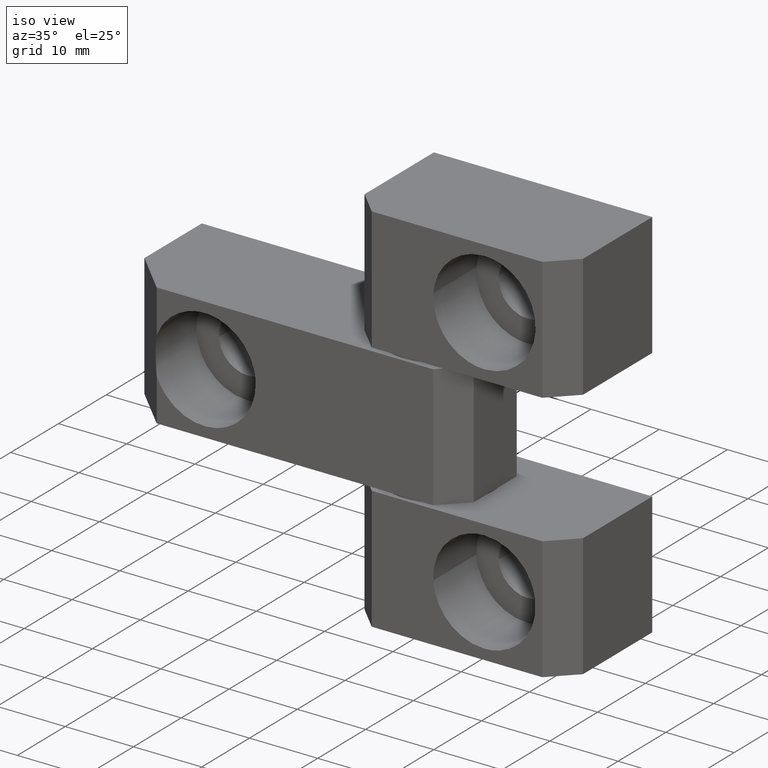
[diagram: clean part render]
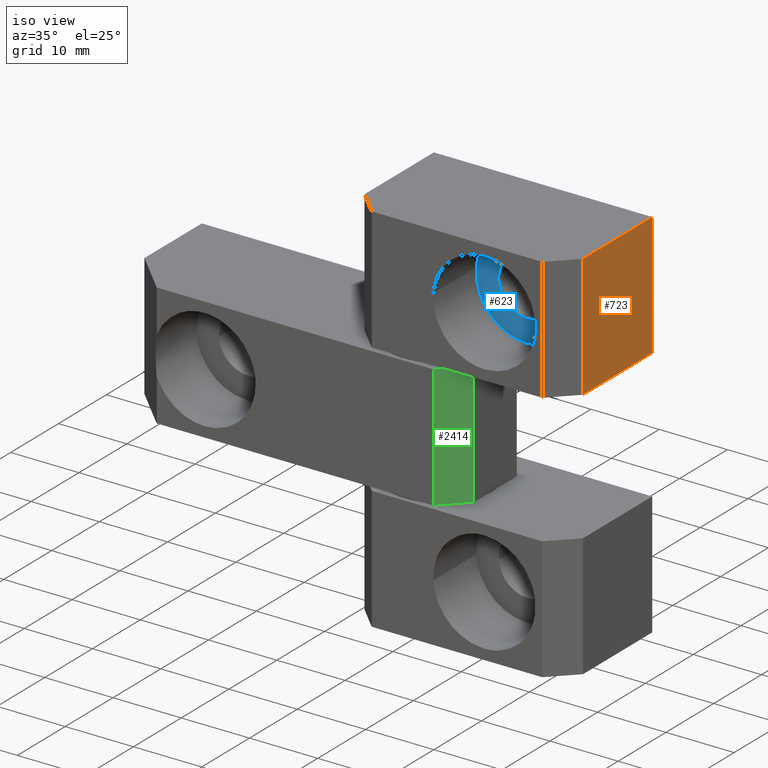
[diagram: same view with three faces highlighted in distinct colors, each labeled with its STEP entity id]
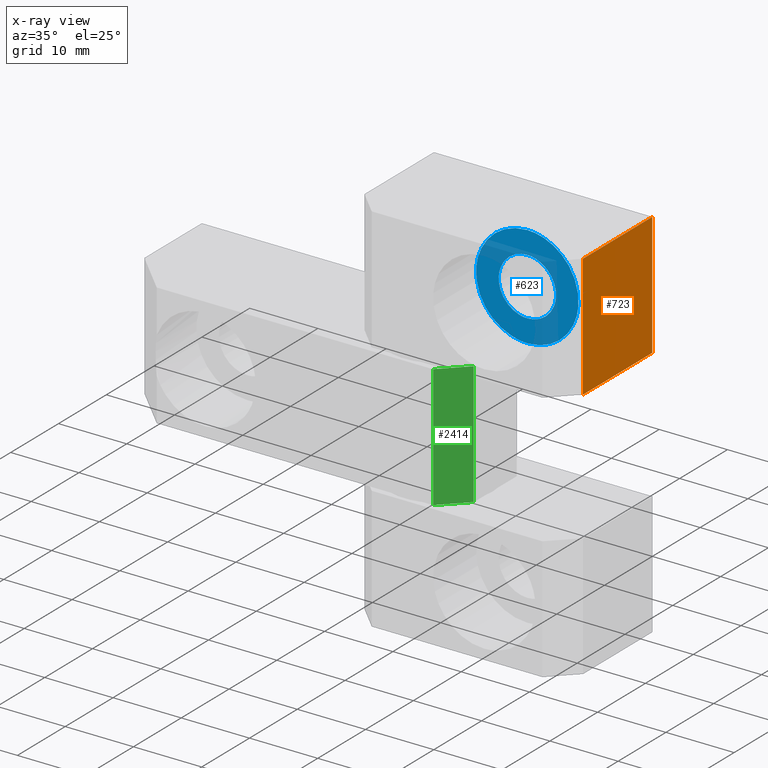
[diagram: x-ray of the same camera — body ghosted, the three highlighted faces saturated]
A machine part, iso view with three faces highlighted in distinct colors.
The next image is the same camera in x-ray (body ghosted, the three faces saturated) — at least one of them is partly hidden behind the body in this view.
Their STEP definitions:

[orange] entity #723 — the highlighted face is a freeform B-spline surface patch.
#645=CARTESIAN_POINT('',(24.000001139938799,-4.500000688713040,55.000002612359800));
#646=VERTEX_POINT('',#645);
#652=CARTESIAN_POINT('',(24.000001139938799,10.0,55.000002612359800));
#653=VERTEX_POINT('',#652);
#654=CARTESIAN_POINT('',(24.000001139938799,10.0,55.000002612359800));
#655=CARTESIAN_POINT('',(24.000001139938799,-4.500000688713040,55.000002612359800));
#656=QUASI_UNIFORM_CURVE('',1,(#654,#655),.UNSPECIFIED.,.F.,.U.);
#657=EDGE_CURVE('',#653,#646,#656,.T.);
#687=CARTESIAN_POINT('',(24.000001139938799,-4.500000688713040,37.000001757405549));
#688=VERTEX_POINT('',#687);
#694=CARTESIAN_POINT('',(24.000001139938799,-4.500000688713040,37.000001757405549));
#695=CARTESIAN_POINT('',(24.000001139938799,-4.500000688713040,55.000002612359800));
#696=QUASI_UNIFORM_CURVE('',1,(#694,#695),.UNSPECIFIED.,.F.,.U.);
#697=EDGE_CURVE('',#688,#646,#696,.T.);
#702=CARTESIAN_POINT('',(24.000001139938799,10.724274954493220,36.100899826597008));
#703=CARTESIAN_POINT('',(24.000001139938799,10.724274954493220,55.899104543168349));
#704=CARTESIAN_POINT('',(24.000001139938799,-5.224274995005713,36.100899826597008));
#705=CARTESIAN_POINT('',(24.000001139938799,-5.224274995005713,55.899104543168349));
#706=B_SPLINE_SURFACE_WITH_KNOTS('',1,1,((#702,#704),(#703,#705)),.UNSPECIFIED.,.F.,.F.,.U.,(2,2),(2,2),(0.0,19.798204716571341),(0.0,15.948549949498929),.UNSPECIFIED.);
#707=ORIENTED_EDGE('',*,*,#657,.T.);
#708=ORIENTED_EDGE('',*,*,#697,.F.);
#709=CARTESIAN_POINT('',(24.000001139938799,10.0,37.000001757405549));
#710=VERTEX_POINT('',#709);
#711=CARTESIAN_POINT('',(24.000001139938799,10.0,37.000001757405549));
#712=CARTESIAN_POINT('',(24.000001139938799,-4.500000688713040,37.000001757405549));
#713=QUASI_UNIFORM_CURVE('',1,(#711,#712),.UNSPECIFIED.,.F.,.U.);
#714=EDGE_CURVE('',#710,#688,#713,.T.);
#715=ORIENTED_EDGE('',*,*,#714,.F.);
#716=CARTESIAN_POINT('',(24.000001139938799,10.0,37.000001757405549));
#717=CARTESIAN_POINT('',(24.000001139938799,10.0,55.000002612359800));
#718=QUASI_UNIFORM_CURVE('',1,(#716,#717),.UNSPECIFIED.,.F.,.U.);
#719=EDGE_CURVE('',#710,#653,#718,.T.);
#720=ORIENTED_EDGE('',*,*,#719,.T.);
#721=EDGE_LOOP('',(#707,#708,#715,#720));
#722=FACE_OUTER_BOUND('',#721,.T.);
#723=ADVANCED_FACE('',(#722),#706,.T.);

[blue] entity #623 — the highlighted face is a freeform B-spline surface patch.
#248=CARTESIAN_POINT('',(12.000000569969419,0.999999572523076,41.800001985393372));
#249=VERTEX_POINT('',#248);
#250=CARTESIAN_POINT('',(16.187053570515761,0.999999572523075,45.670473967082962));
#251=VERTEX_POINT('',#250);
#252=CARTESIAN_POINT('',(12.000000569969419,0.999999572523076,41.800001985393372));
#253=CARTESIAN_POINT('',(15.882440819170599,0.999999572523076,41.800001985393372));
#254=CARTESIAN_POINT('',(16.187053570515765,0.999999572523075,45.670473967082962));
#262=(BOUNDED_CURVE()B_SPLINE_CURVE(2,(#252,#253,#254),.UNSPECIFIED.,.F.,.U.)B_SPLINE_CURVE_WITH_KNOTS((3,3),(0.0,0.236331300625313),.UNSPECIFIED.)CURVE()GEOMETRIC_REPRESENTATION_ITEM()RATIONAL_B_SPLINE_CURVE((1.0,0.723120658613929,0.969723356156260))REPRESENTATION_ITEM(''));
#263=EDGE_CURVE('',#249,#251,#262,.T.);
#304=CARTESIAN_POINT('',(7.812947569423081,0.999999572523076,46.329530402682423));
#305=VERTEX_POINT('',#304);
#311=CARTESIAN_POINT('',(7.812947569423081,0.999999572523076,46.329530402682423));
#312=CARTESIAN_POINT('',(7.800000370480094,0.999999572523076,46.165020642244322));
#313=CARTESIAN_POINT('',(7.800000370480094,0.999999572523076,46.000002184882703));
#314=CARTESIAN_POINT('',(7.800000370480094,0.999999572523076,41.800001985393379));
#315=CARTESIAN_POINT('',(12.000000569969419,0.999999572523076,41.800001985393372));
#323=(BOUNDED_CURVE()B_SPLINE_CURVE(2,(#311,#312,#313,#314,#315),.UNSPECIFIED.,.F.,.U.)B_SPLINE_CURVE_WITH_KNOTS((3,2,3),(0.736331300625313,0.750000000000000,1.0),.UNSPECIFIED.)CURVE()GEOMETRIC_REPRESENTATION_ITEM()RATIONAL_B_SPLINE_CURVE((0.969723356156261,0.983986122572619,1.0,0.707106781186548,1.0))REPRESENTATION_ITEM(''));
#324=EDGE_CURVE('',#305,#249,#323,.T.);
#347=CARTESIAN_POINT('',(12.000000569969419,0.999999572523076,50.200002384372020));
#348=VERTEX_POINT('',#347);
#349=CARTESIAN_POINT('',(16.187053570515761,0.999999572523075,45.670473967082962));
#350=CARTESIAN_POINT('',(16.200000769458750,0.999999572523076,45.834983727521077));
#351=CARTESIAN_POINT('',(16.200000769458750,0.999999572523076,46.000002184882703));
#352=CARTESIAN_POINT('',(16.200000769458747,0.999999572523076,50.200002384372027));
#353=CARTESIAN_POINT('',(12.000000569969419,0.999999572523076,50.200002384372020));
#361=(BOUNDED_CURVE()B_SPLINE_CURVE(2,(#349,#350,#351,#352,#353),.UNSPECIFIED.,.F.,.U.)B_SPLINE_CURVE_WITH_KNOTS((3,2,3),(0.236331300625313,0.250000000000000,0.500000000000000),.UNSPECIFIED.)CURVE()GEOMETRIC_REPRESENTATION_ITEM()RATIONAL_B_SPLINE_CURVE((0.969723356156260,0.983986122572618,1.0,0.707106781186548,1.0))REPRESENTATION_ITEM(''));
#362=EDGE_CURVE('',#251,#348,#361,.T.);
#364=CARTESIAN_POINT('',(12.000000569969419,0.999999572523076,50.200002384372020));
#365=CARTESIAN_POINT('',(8.117560320768225,0.999999572523076,50.200002384372034));
#366=CARTESIAN_POINT('',(7.812947569423081,0.999999572523076,46.329530402682423));
#374=(BOUNDED_CURVE()B_SPLINE_CURVE(2,(#364,#365,#366),.UNSPECIFIED.,.F.,.U.)B_SPLINE_CURVE_WITH_KNOTS((3,3),(0.500000000000000,0.736331300625314),.UNSPECIFIED.)CURVE()GEOMETRIC_REPRESENTATION_ITEM()RATIONAL_B_SPLINE_CURVE((1.0,0.723120658613928,0.969723356156262))REPRESENTATION_ITEM(''));
#375=EDGE_CURVE('',#348,#305,#374,.T.);
#430=CARTESIAN_POINT('',(12.000000569969419,0.999999572523080,38.500001828651783));
#431=VERTEX_POINT('',#430);
#432=CARTESIAN_POINT('',(19.476881610808199,0.999999572522986,45.411567613724870));
#433=VERTEX_POINT('',#432);
#434=CARTESIAN_POINT('',(12.000000569969419,0.999999572523080,38.500001828651783));
#435=CARTESIAN_POINT('',(18.932937655231441,0.999999572523080,38.500001828651783));
#436=CARTESIAN_POINT('',(19.476881610808199,0.999999572522986,45.411567613724870));
#444=(BOUNDED_CURVE()B_SPLINE_CURVE(2,(#434,#435,#436),.UNSPECIFIED.,.F.,.U.)B_SPLINE_CURVE_WITH_KNOTS((3,3),(0.0,0.236331499521181),.UNSPECIFIED.)CURVE()GEOMETRIC_REPRESENTATION_ITEM()RATIONAL_B_SPLINE_CURVE((1.0,0.723120425592926,0.969723771237133))REPRESENTATION_ITEM(''));
#445=EDGE_CURVE('',#431,#433,#444,.T.);
#447=CARTESIAN_POINT('',(4.523119529130643,0.999999572522986,46.588436756040522));
#448=VERTEX_POINT('',#447);
#449=CARTESIAN_POINT('',(4.523119529130643,0.999999572522986,46.588436756040522));
#450=CARTESIAN_POINT('',(4.500000213738510,0.999999572523080,46.294673643933393));
#451=CARTESIAN_POINT('',(4.500000213738510,0.999999572523080,46.000002184882703));
#452=CARTESIAN_POINT('',(4.500000213738510,0.999999572523080,38.500001828651783));
#453=CARTESIAN_POINT('',(12.000000569969419,0.999999572523080,38.500001828651783));
#461=(BOUNDED_CURVE()B_SPLINE_CURVE(2,(#449,#450,#451,#452,#453),.UNSPECIFIED.,.F.,.U.)B_SPLINE_CURVE_WITH_KNOTS((3,2,3),(0.736331499521181,0.750000000000000,1.0),.UNSPECIFIED.)CURVE()GEOMETRIC_REPRESENTATION_ITEM()RATIONAL_B_SPLINE_CURVE((0.969723771237133,0.983986355593622,1.0,0.707106781186548,1.0))REPRESENTATION_ITEM(''));
#462=EDGE_CURVE('',#448,#431,#461,.T.);
#529=CARTESIAN_POINT('',(12.000000569969419,0.999999572523080,53.500002541113609));
#530=VERTEX_POINT('',#529);
#531=CARTESIAN_POINT('',(19.476881610808192,0.999999572522986,45.411567613724870));
#532=CARTESIAN_POINT('',(19.500000926200325,0.999999572523080,45.705330725831999));
#533=CARTESIAN_POINT('',(19.500000926200329,0.999999572523080,46.000002184882703));
#534=CARTESIAN_POINT('',(19.500000926200329,0.999999572523080,53.500002541113602));
#535=CARTESIAN_POINT('',(12.000000569969419,0.999999572523080,53.500002541113609));
#543=(BOUNDED_CURVE()B_SPLINE_CURVE(2,(#531,#532,#533,#534,#535),.UNSPECIFIED.,.F.,.U.)B_SPLINE_CURVE_WITH_KNOTS((3,2,3),(0.236331499521181,0.250000000000000,0.500000000000000),.UNSPECIFIED.)CURVE()GEOMETRIC_REPRESENTATION_ITEM()RATIONAL_B_SPLINE_CURVE((0.969723771237134,0.983986355593622,1.0,0.707106781186548,1.0))REPRESENTATION_ITEM(''));
#544=EDGE_CURVE('',#433,#530,#543,.T.);
#578=CARTESIAN_POINT('',(12.000000569969419,0.999999572523080,53.500002541113609));
#579=CARTESIAN_POINT('',(5.067063484707405,0.999999572523080,53.500002541113602));
#580=CARTESIAN_POINT('',(4.523119529130643,0.999999572522986,46.588436756040522));
#588=(BOUNDED_CURVE()B_SPLINE_CURVE(2,(#578,#579,#580),.UNSPECIFIED.,.F.,.U.)B_SPLINE_CURVE_WITH_KNOTS((3,3),(0.500000000000000,0.736331499521181),.UNSPECIFIED.)CURVE()GEOMETRIC_REPRESENTATION_ITEM()RATIONAL_B_SPLINE_CURVE((1.0,0.723120425592926,0.969723771237133))REPRESENTATION_ITEM(''));
#589=EDGE_CURVE('',#530,#448,#588,.T.);
#606=CARTESIAN_POINT('',(20.246961184702620,0.999999572523078,37.750749797216841));
#607=CARTESIAN_POINT('',(20.246961184702620,0.999999572523078,54.249254170217178));
#608=CARTESIAN_POINT('',(3.753039150573482,0.999999572523078,37.750749797216841));
#609=CARTESIAN_POINT('',(3.753039150573482,0.999999572523078,54.249254170217178));
#610=B_SPLINE_SURFACE_WITH_KNOTS('',1,1,((#606,#608),(#607,#609)),.UNSPECIFIED.,.F.,.F.,.U.,(2,2),(2,2),(0.0,16.498504373000340),(0.0,16.493922034129142),.UNSPECIFIED.);
#611=ORIENTED_EDGE('',*,*,#445,.T.);
#612=ORIENTED_EDGE('',*,*,#544,.T.);
#613=ORIENTED_EDGE('',*,*,#589,.T.);
#614=ORIENTED_EDGE('',*,*,#462,.T.);
#615=EDGE_LOOP('',(#611,#612,#613,#614));
#616=FACE_OUTER_BOUND('',#615,.T.);
#617=ORIENTED_EDGE('',*,*,#375,.F.);
#618=ORIENTED_EDGE('',*,*,#362,.F.);
#619=ORIENTED_EDGE('',*,*,#263,.F.);
#620=ORIENTED_EDGE('',*,*,#324,.F.);
#621=EDGE_LOOP('',(#617,#618,#619,#620));
#622=FACE_BOUND('',#621,.T.);
#623=ADVANCED_FACE('',(#616,#622),#610,.T.);

[green] entity #2414 — the highlighted face is a freeform B-spline surface patch.
#2189=CARTESIAN_POINT('',(7.999999240040809,-4.500000854954100,18.500000878703300));
#2190=VERTEX_POINT('',#2189);
#2196=CARTESIAN_POINT('',(4.499999240040810,-8.000000854954099,18.500000878703300));
#2197=VERTEX_POINT('',#2196);
#2198=CARTESIAN_POINT('',(7.999999240040809,-4.500000854954100,18.500000878703300));
#2199=CARTESIAN_POINT('',(4.499999240040810,-8.000000854954099,18.500000878703300));
#2200=QUASI_UNIFORM_CURVE('',1,(#2198,#2199),.UNSPECIFIED.,.F.,.U.);
#2201=EDGE_CURVE('',#2190,#2197,#2200,.T.);
#2273=CARTESIAN_POINT('',(4.499999240040810,-8.000000854954099,36.500001733657001));
#2274=VERTEX_POINT('',#2273);
#2280=CARTESIAN_POINT('',(7.999999240040809,-4.500000854954100,36.500001733657001));
#2281=VERTEX_POINT('',#2280);
#2282=CARTESIAN_POINT('',(7.999999240040809,-4.500000854954100,36.500001733657001));
#2283=CARTESIAN_POINT('',(4.499999240040810,-8.000000854954099,36.500001733657001));
#2284=QUASI_UNIFORM_CURVE('',1,(#2282,#2283),.UNSPECIFIED.,.F.,.U.);
#2285=EDGE_CURVE('',#2281,#2274,#2284,.T.);
#2389=CARTESIAN_POINT('',(4.499999240040810,-8.000000854954099,36.500001733657001));
#2390=CARTESIAN_POINT('',(4.499999240040810,-8.000000854954099,18.500000878703300));
#2391=QUASI_UNIFORM_CURVE('',1,(#2389,#2390),.UNSPECIFIED.,.F.,.U.);
#2392=EDGE_CURVE('',#2274,#2197,#2391,.T.);
#2399=CARTESIAN_POINT('',(4.325174095051468,-8.174825999943439,17.600899985676371));
#2400=CARTESIAN_POINT('',(8.174824072105766,-4.325176022889143,17.600899985676371));
#2401=CARTESIAN_POINT('',(4.325174095051468,-8.174825999943439,37.399099568965497));
#2402=CARTESIAN_POINT('',(8.174824072105766,-4.325176022889143,37.399099568965497));
#2403=B_SPLINE_SURFACE_WITH_KNOTS('',1,1,((#2399,#2401),(#2400,#2402)),.UNSPECIFIED.,.F.,.F.,.U.,(2,2),(2,2),(0.0,5.444227207939461),(0.0,19.798199583289129),.UNSPECIFIED.);
#2404=ORIENTED_EDGE('',*,*,#2201,.F.);
#2405=CARTESIAN_POINT('',(7.999999240040809,-4.500000854954100,36.500001733657001));
#2406=CARTESIAN_POINT('',(7.999999240040809,-4.500000854954100,18.500000878703300));
#2407=QUASI_UNIFORM_CURVE('',1,(#2405,#2406),.UNSPECIFIED.,.F.,.U.);
#2408=EDGE_CURVE('',#2281,#2190,#2407,.T.);
#2409=ORIENTED_EDGE('',*,*,#2408,.F.);
#2410=ORIENTED_EDGE('',*,*,#2285,.T.);
#2411=ORIENTED_EDGE('',*,*,#2392,.T.);
#2412=EDGE_LOOP('',(#2404,#2409,#2410,#2411));
#2413=FACE_OUTER_BOUND('',#2412,.T.);
#2414=ADVANCED_FACE('',(#2413),#2403,.T.);